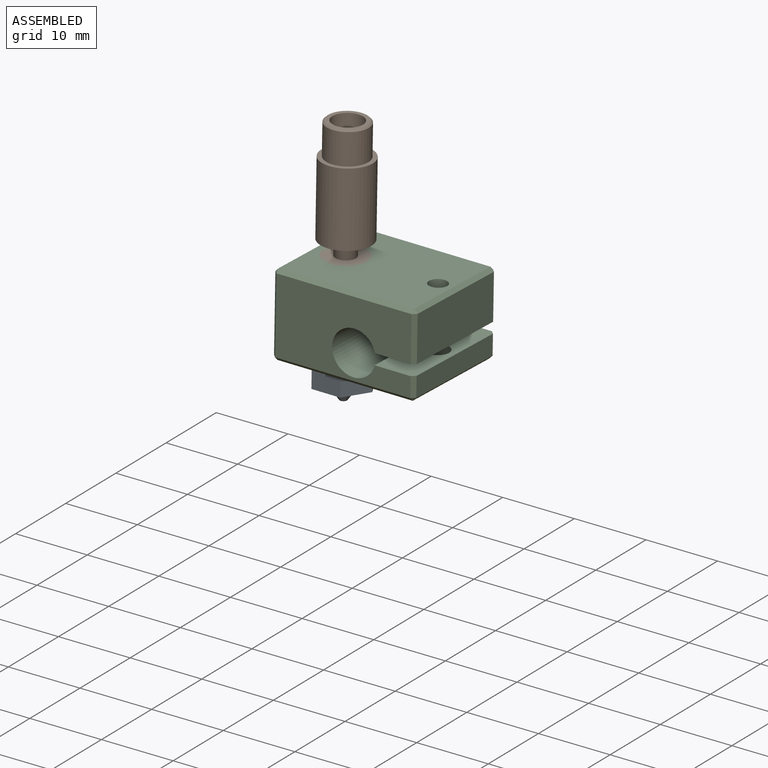
[diagram: assembled view]
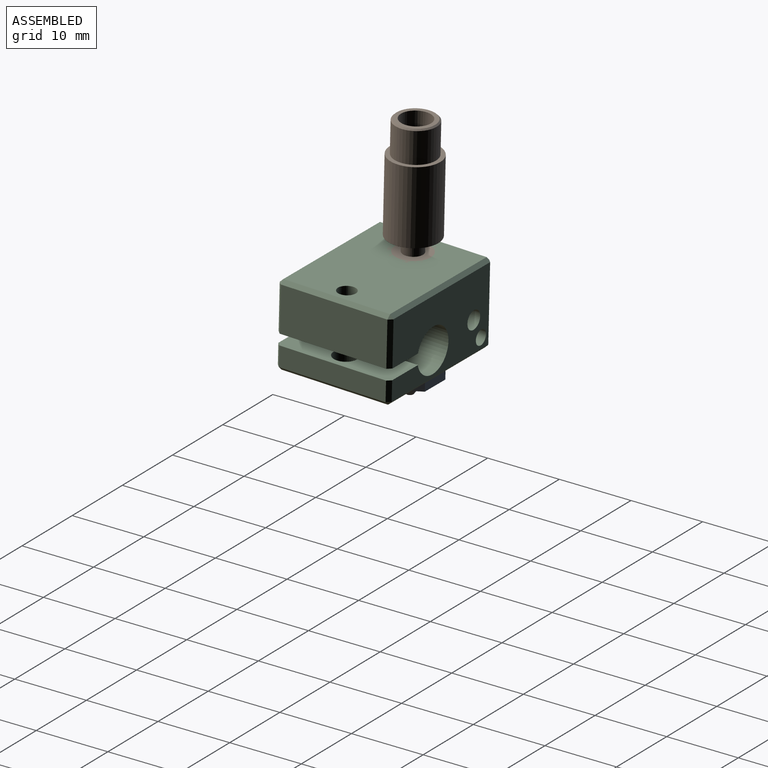
[diagram: assembled view, second angle]
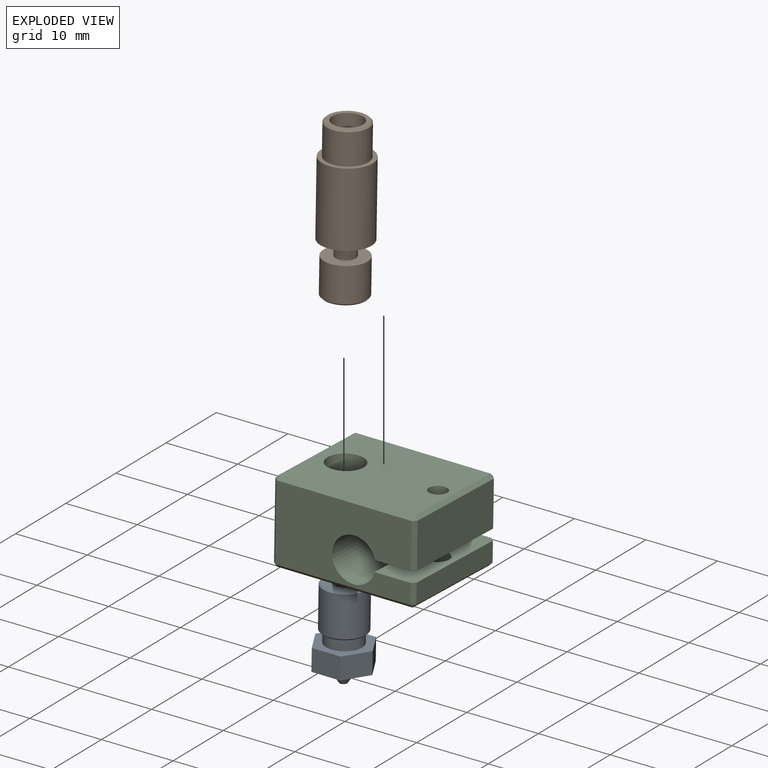
[diagram: exploded view]
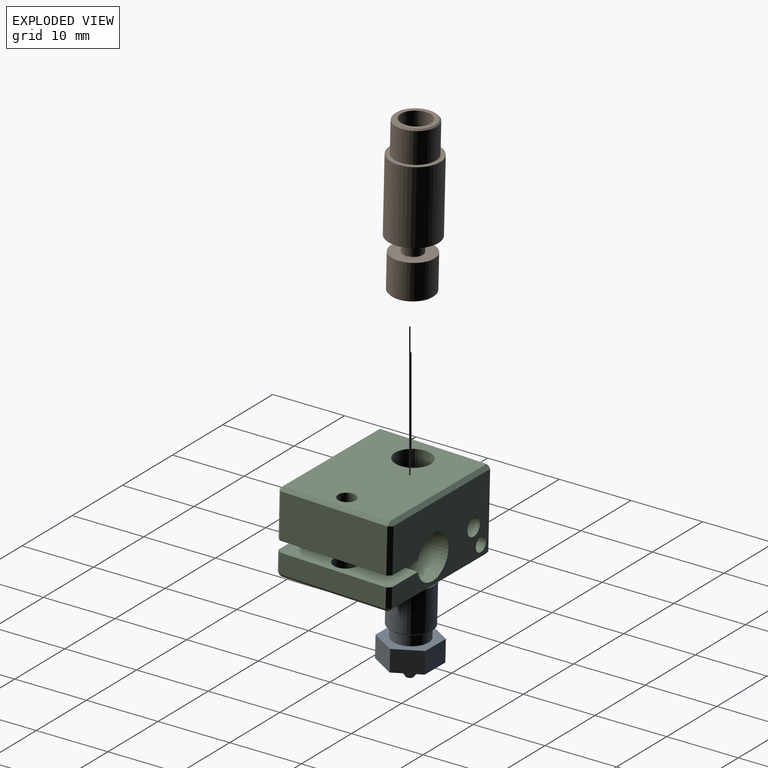
[diagram: exploded view, second angle]
ASSEMBLY  parts=3 mates=2
PART A: 22 faces, bbox 8.1x7x12.5 mm
  f0: cone r=1mm half-angle=45deg, axis (0,0,-1), area 5.6mm2, adj f6,f13
  f1: cone r=2.8mm half-angle=45deg, axis (0,0,1), area 5.2mm2, adj f9,f13
  f2: cone r=3mm half-angle=45deg, axis (0,0,-1), area 5.2mm2, adj f9,f12
  f3: cylinder r=0.2mm len=0.95mm, axis (0,0,1), area 1.2mm2, adj f4,f20
  f4: cone r=0.5mm half-angle=59deg, axis (0,0,-1), area 0.8mm2, adj f3,f5
  f5: cylinder r=0.5mm len=1mm, axis (0,0,-1), area 1.8mm2, adj f4,f7
  f6: cylinder r=1mm len=10mm, axis (0,0,-1), area 62.8mm2, adj f0,f7
  f7: cone r=1mm half-angle=59deg, axis (0,0,-1), area 2.7mm2, adj f5,f6
  f8: cone r=1.9mm half-angle=35deg, axis (0,0,-1), area 18.4mm2, adj f20,f21
  f9: cylinder r=3mm len=6mm, axis (0,0,-1), area 105.6mm2, adj f1,f2
  f10: cylinder r=2.5mm len=5mm, axis (0,0,-1), area 23.6mm2, adj f11,f12
  f11: plane 8.08x7mm, normal (0,0,-1), area 22.8mm2, adj f10,f14,f15,f16,f17,f18,f19
  f12: plane 5.6x5.6mm, normal (0,0,1), area 5mm2, adj f2,f10
  f13: plane 5.6x5.6mm, normal (0,0,-1), area 17.6mm2, adj f0,f1
  f14: plane 4.04x3mm, normal (0,-1,0), area 12.1mm2, adj f11,f15,f19,f21
  f15: plane 3.5x3mm, normal (-0.87,-0.5,0), area 12.1mm2, adj f11,f14,f16,f21
  f16: plane 3.5x3mm, normal (-0.87,0.5,0), area 12.1mm2, adj f11,f15,f17,f21
  f17: plane 4.04x3mm, normal (0,1,0), area 12.1mm2, adj f11,f16,f18,f21
  f18: plane 3.5x3mm, normal (0.87,0.5,0), area 12.1mm2, adj f11,f17,f19,f21
  f19: plane 3.5x3mm, normal (0.87,-0.5,0), area 12.1mm2, adj f11,f14,f18,f21
  f20: plane 1x1mm, normal (0,0,1), area 0.7mm2, adj f3,f8
  f21: plane 8.08x7mm, normal (0,0,1), area 31.1mm2, adj f8,f14,f15,f16,f17,f18,f19
PART B: 14 faces, bbox 7x7x21.9 mm
  f0: cone r=2.8mm half-angle=45deg, axis (0,0,-1), area 5.2mm2, adj f4,f9
  f1: cone r=2.9mm half-angle=45deg, axis (0,0,1), area 5mm2, adj f5,f11
  f2: cylinder r=2.1mm len=4.5mm, axis (0,0,-1), area 59.4mm2, adj f3,f11
  f3: cone r=2.1mm half-angle=59deg, axis (0,0,-1), area 12.5mm2, adj f2,f7
  f4: cylinder r=3mm len=6mm, axis (0,0,1), area 90.5mm2, adj f0,f10
  f5: cylinder r=2.9mm len=5.8mm, axis (0,0,1), area 78.4mm2, adj f1,f13
  f6: cylinder r=1.4mm len=2.8mm, axis (0,0,-1), area 18.5mm2, adj f10,f12
  f7: cylinder r=1mm len=16.74mm, axis (0,0,1), area 105.2mm2, adj f3,f9
  f8: cylinder r=3.5mm len=10.3mm, axis (0,0,1), area 226.5mm2, adj f12,f13
  f9: plane 5.6x5.6mm, normal (0,0,1), area 21.5mm2, adj f0,f7
  f10: plane 6x6mm, normal (0,0,-1), area 22.1mm2, adj f4,f6
  f11: plane 5.4x5.4mm, normal (0,0,-1), area 9mm2, adj f1,f2
  f12: plane 7x7mm, normal (0,0,1), area 32.3mm2, adj f6,f8
  f13: plane 7x7mm, normal (0,0,-1), area 12.1mm2, adj f5,f8
PART C: 41 faces, bbox 20x11.5x16 mm
  f0: cylinder r=2.5mm len=11.5mm, axis (0,1,0), area 180.6mm2, adj f15,f16
  f1: cylinder r=0.75mm len=2.35mm, axis (0,0,1), area 11.1mm2, adj f2,f4
  f2: cone r=0.75mm half-angle=59deg, axis (0,0,1), area 2.1mm2, adj f1
  f3: cylinder r=1mm len=2mm, axis (0,0,1), area 12.6mm2, adj f4,f12
  f4: cone r=1mm half-angle=59deg, axis (0,0,1), area 1.6mm2, adj f1,f3
  f5: cylinder r=1.25mm len=3.5mm, axis (0,0,1), area 27.5mm2, adj f6,f12
  f6: cone r=1.25mm half-angle=59deg, axis (0,0,1), area 5.7mm2, adj f5
  f7: cylinder r=1.65mm len=3.3mm, axis (0,-1,0), area 33.7mm2, adj f16,f17
  f8: cylinder r=1.25mm len=6.75mm, axis (0,-1,0), area 53mm2, adj f15,f18
  f9: cylinder r=3.05mm len=16mm, axis (0,0,1), area 282.4mm2, adj f12,f14,f17,f18
  f10: plane 15x6.25mm, normal (-1,0,0), area 93.7mm2, adj f18,f19,f21,f22
  f11: plane 15x2.75mm, normal (-1,0,0), area 41.2mm2, adj f17,f26,f34,f35
  f12: plane 19x10.5mm, normal (0,0,1), area 154.8mm2, adj f3,f5,f9,f17,f18,f21,f27,f35
  f13: plane 15x10.5mm, normal (1,0,0), area 157.5mm2, adj f28,f29,f36,f37
  f14: plane 19x10.5mm, normal (0,0,-1), area 162.8mm2, adj f9,f17,f18,f19,f23,f26,f29,f30
  f15: plane 19x15mm, normal (0,1,0), area 260.5mm2, adj f0,f8,f22,f23,f27,f28
  f16: plane 19x15mm, normal (0,-1,0), area 256.8mm2, adj f0,f7,f30,f34,f37,f40
  f17: plane 16x5.54mm, normal (0,1,0), area 79.9mm2, adj f7,f9,f11,f12,f14,f26,f35
  f18: plane 16x5.54mm, normal (0,-1,0), area 83.5mm2, adj f8,f9,f10,f12,f14,f19,f21
  f19: plane 6.25x0.5mm, normal (-0.71,0,-0.71), area 4.4mm2, adj f10,f14,f18,f20
  f20: plane 0.5x0.5mm, normal (-0.58,0.58,-0.58), area 0.2mm2, adj f19,f22,f23
  f21: plane 6.25x0.5mm, normal (-0.71,0,0.71), area 4.4mm2, adj f10,f12,f18,f24
  f22: plane 15x0.5mm, normal (-0.71,0.71,0), area 10.6mm2, adj f10,f15,f20,f24
  f23: plane 19x0.5mm, normal (0,0.71,-0.71), area 13.4mm2, adj f14,f15,f20,f25
  f24: plane 0.5x0.5mm, normal (-0.58,0.58,0.58), area 0.2mm2, adj f21,f22,f27
  f25: plane 0.5x0.5mm, normal (0.58,0.58,-0.58), area 0.2mm2, adj f23,f28,f29
  f26: plane 2.75x0.5mm, normal (-0.71,0,-0.71), area 1.9mm2, adj f11,f14,f17,f31
  f27: plane 19x0.5mm, normal (0,0.71,0.71), area 13.4mm2, adj f12,f15,f24,f32
  f28: plane 15x0.5mm, normal (0.71,0.71,0), area 10.6mm2, adj f13,f15,f25,f32
  f29: plane 10.5x0.5mm, normal (0.71,0,-0.71), area 7.4mm2, adj f13,f14,f25,f33
  f30: plane 19x0.5mm, normal (0,-0.71,-0.71), area 13.4mm2, adj f14,f16,f31,f33
  f31: plane 0.5x0.5mm, normal (-0.58,-0.58,-0.58), area 0.2mm2, adj f26,f30,f34
  f32: plane 0.5x0.5mm, normal (0.58,0.58,0.58), area 0.2mm2, adj f27,f28,f36
  f33: plane 0.5x0.5mm, normal (0.58,-0.58,-0.58), area 0.2mm2, adj f29,f30,f37
  f34: plane 15x0.5mm, normal (-0.71,-0.71,0), area 10.6mm2, adj f11,f16,f31,f38
  f35: plane 2.75x0.5mm, normal (-0.71,0,0.71), area 1.9mm2, adj f11,f12,f17,f38
  f36: plane 10.5x0.5mm, normal (0.71,0,0.71), area 7.4mm2, adj f12,f13,f32,f39
  f37: plane 15x0.5mm, normal (0.71,-0.71,0), area 10.6mm2, adj f13,f16,f33,f39
  f38: plane 0.5x0.5mm, normal (-0.58,-0.58,0.58), area 0.2mm2, adj f34,f35,f40
  f39: plane 0.5x0.5mm, normal (0.58,-0.58,0.58), area 0.2mm2, adj f36,f37,f40
  f40: plane 19x0.5mm, normal (0,-0.71,0.71), area 13.4mm2, adj f12,f16,f38,f39
PLACE A rot(axis=(1,0,0),178.6deg) t=(-15.39,7.42,7.69)mm
PLACE B rot(axis=(0.71,0.7,-0.01),179deg) t=(-15.39,7.69,18.69)mm
PLACE C rot(axis=(0,0.72,0.7),179.6deg) t=(0.18,15.38,11.99)mm
MATE fastened B.f0 <-> C.f0  axis (0,0.02,1) through (-15.39,7.82,23.69)mm
MATE fastened A.f0 <-> C.f0  axis (0,-0.02,-1) through (-15.39,7.53,12.19)mm
